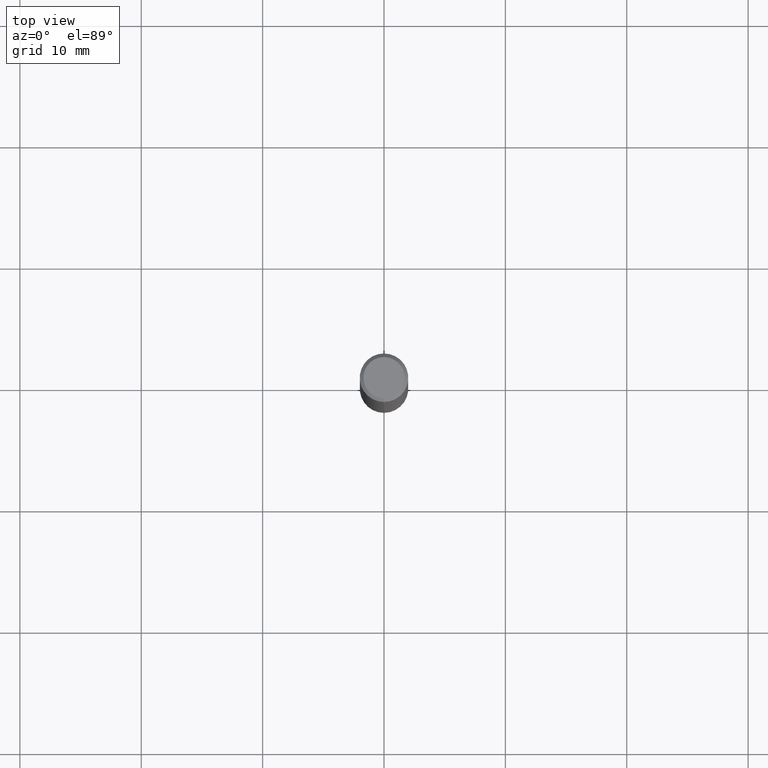
[diagram: clean part render]
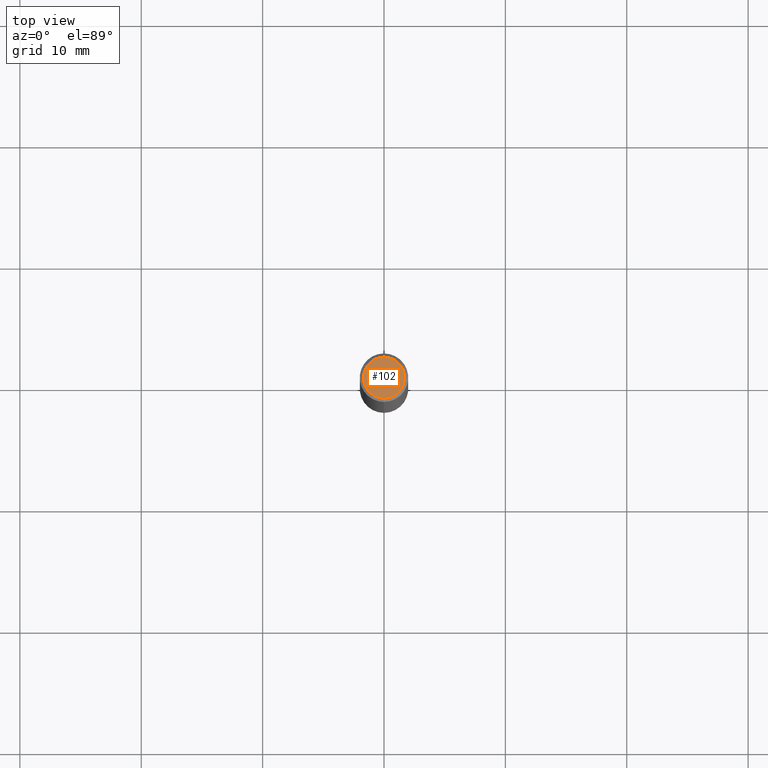
[diagram: same view with one face highlighted and labeled with its STEP entity id]
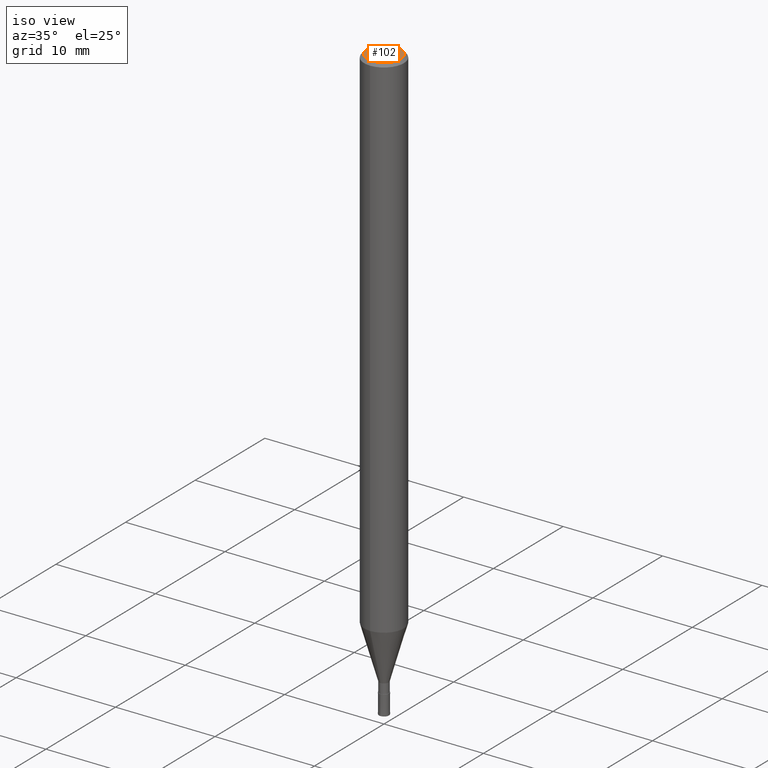
[diagram: same view with one face highlighted and labeled with its STEP entity id]
A machine part, top view. The second image highlights one B-rep face of the part: STEP entity #102.
A second angle (iso view) of the same face is appended — the face is thin or edge-on in the first view.
In plain terms, the highlighted planar face has unit normal (-0, 0, 1).
Its self-contained STEP definition (entity closure, byte-faithful):
#102=ADVANCED_FACE('',(#241),#242,.T.);
#104=EDGE_CURVE('',#130,#208,#244,.T.);
#130=VERTEX_POINT('',#272);
#202=EDGE_CURVE('',#208,#130,#354,.T.);
#208=VERTEX_POINT('',#361);
#241=FACE_OUTER_BOUND('',#388,.T.);
#242=PLANE('',#389);
#244=CIRCLE('',#392,1.7);
#272=CARTESIAN_POINT('',(0.0,1.7,0.0));
#354=CIRCLE('',#531,1.7);
#361=CARTESIAN_POINT('',(2.08183080149804E-016,-1.7,0.0));
#388=EDGE_LOOP('',(#563,#564));
#389=AXIS2_PLACEMENT_3D('',#565,#566,#567);
#392=AXIS2_PLACEMENT_3D('',#568,#569,#570);
#531=AXIS2_PLACEMENT_3D('',#702,#703,#704);
#563=ORIENTED_EDGE('',*,*,#104,.F.);
#564=ORIENTED_EDGE('',*,*,#202,.F.);
#565=CARTESIAN_POINT('',(0.0,0.85,0.0));
#566=DIRECTION('',(-0.0,0.0,1.0));
#567=DIRECTION('',(0.0,-1.0,0.0));
#568=CARTESIAN_POINT('',(0.0,0.0,0.0));
#569=DIRECTION('',(0.0,0.0,-1.0));
#570=DIRECTION('',(0.0,1.0,0.0));
#702=CARTESIAN_POINT('',(0.0,0.0,0.0));
#703=DIRECTION('',(0.0,0.0,-1.0));
#704=DIRECTION('',(0.0,1.0,0.0));